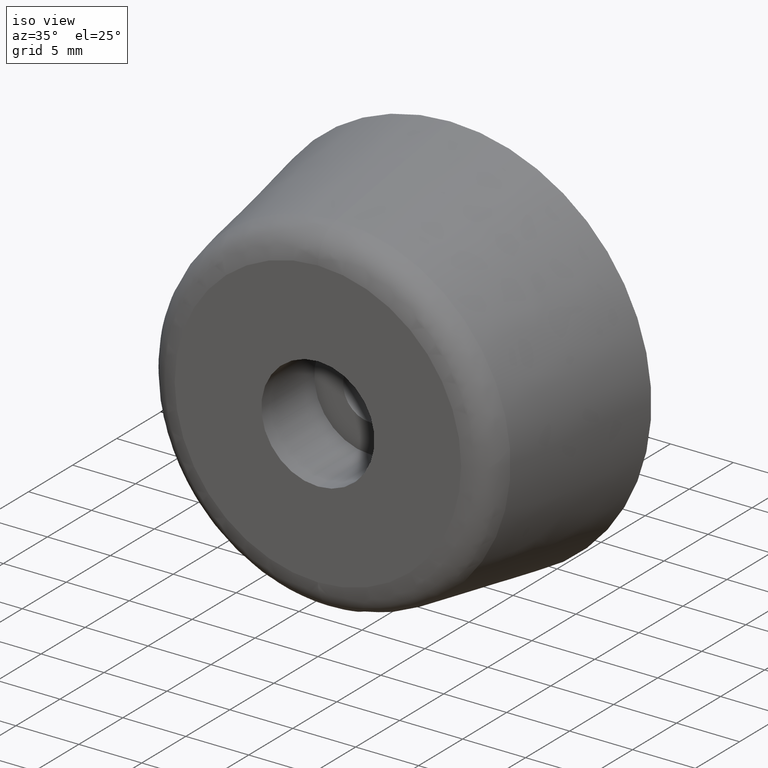
[diagram: clean part render]
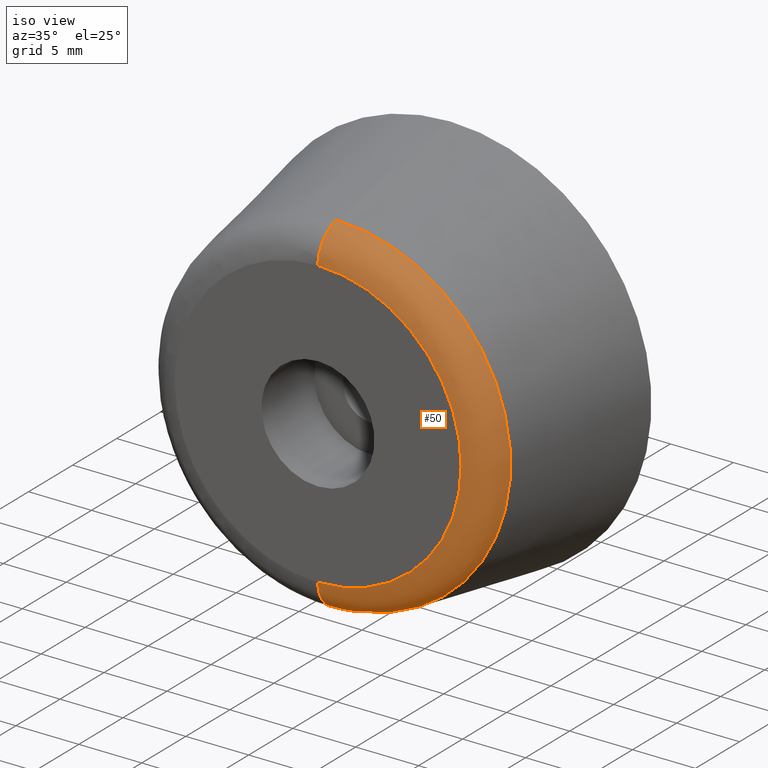
[diagram: same view with one face highlighted and labeled with its STEP entity id]
A machine part, iso view. The second image highlights one B-rep face of the part: STEP entity #50.
In plain terms, the highlighted face is a freeform B-spline surface patch.
Its self-contained STEP definition (entity closure, byte-faithful):
#50=ADVANCED_FACE('',(#155),#154,.T.);
#154=( BOUNDED_SURFACE() B_SPLINE_SURFACE( 2,2,((#250,#251,#252,#253,#254),(#255,#256,#257,#258,#259),(#260,#261,#262,#263,#264),(#265,#266,#267,#268,#269),(#270,#271,#272,#273,#274)), .UNSPECIFIED.,.F.,.F.,.F.) B_SPLINE_SURFACE_WITH_KNOTS((3,2,3),(3,2,3),(0.00000000000E+00,5.00000000000E-01,1.00000000000E+00),(0.00000000000E+00,5.00000000000E-01,1.00000000000E+00), .UNSPECIFIED. ) GEOMETRIC_REPRESENTATION_ITEM() RATIONAL_B_SPLINE_SURFACE(((1.00000000000E+00,7.63019982473E-01,1.00000000000E+00,7.63019982473E-01,1.00000000000E+00),(7.07106781187E-01,5.39536603787E-01,7.07106781187E-01,5.39536603787E-01,7.07106781187E-01),(1.00000000000E+00,7.63019982473E-01,1.00000000000E+00,7.63019982473E-01,1.00000000000E+00),(7.07106781187E-01,5.39536603787E-01,7.07106781187E-01,5.39536603787E-01,7.07106781187E-01),(1.00000000000E+00,7.63019982473E-01,1.00000000000E+00,7.63019982473E-01,1.00000000000E+00))) REPRESENTATION_ITEM('') SURFACE() );
#155=FACE_OUTER_BOUND('',#275,.T.);
#250=CARTESIAN_POINT('',(1.38777317985E-14,-1.29109974683E+01,-1.38481670886E+01));
#251=CARTESIAN_POINT('',(1.38777332066E-14,-1.50000000000E+01,-1.35000000000E+01));
#252=CARTESIAN_POINT('',(1.38777417722E-14,-1.50000000000E+01,-1.13821822790E+01));
#253=CARTESIAN_POINT('',(1.38777503378E-14,-1.50000000000E+01,-9.26436455808E+00));
#254=CARTESIAN_POINT('',(1.38777517460E-14,-1.29109974683E+01,-8.91619746946E+00));
#255=CARTESIAN_POINT('',(1.38481670886E+01,-1.29109974683E+01,-1.38481670886E+01));
#256=CARTESIAN_POINT('',(1.35000000000E+01,-1.50000000000E+01,-1.35000000000E+01));
#257=CARTESIAN_POINT('',(1.13821822790E+01,-1.50000000000E+01,-1.13821822790E+01));
#258=CARTESIAN_POINT('',(9.26436455808E+00,-1.50000000000E+01,-9.26436455808E+00));
#259=CARTESIAN_POINT('',(8.91619746946E+00,-1.29109974683E+01,-8.91619746946E+00));
#260=CARTESIAN_POINT('',(1.38481670886E+01,-1.29109974683E+01,-8.48011684319E-16));
#261=CARTESIAN_POINT('',(1.35000000000E+01,-1.50000000000E+01,-8.26691190613E-16));
#262=CARTESIAN_POINT('',(1.13821822790E+01,-1.50000000000E+01,-6.97003690373E-16));
#263=CARTESIAN_POINT('',(9.26436455808E+00,-1.50000000000E+01,-5.67316190133E-16));
#264=CARTESIAN_POINT('',(8.91619746946E+00,-1.29109974683E+01,-5.45995696428E-16));
#265=CARTESIAN_POINT('',(1.38481670886E+01,-1.29109974683E+01,1.38481670886E+01));
#266=CARTESIAN_POINT('',(1.35000000000E+01,-1.50000000000E+01,1.35000000000E+01));
#267=CARTESIAN_POINT('',(1.13821822790E+01,-1.50000000000E+01,1.13821822790E+01));
#268=CARTESIAN_POINT('',(9.26436455808E+00,-1.50000000000E+01,9.26436455808E+00));
#269=CARTESIAN_POINT('',(8.91619746946E+00,-1.29109974683E+01,8.91619746946E+00));
#270=CARTESIAN_POINT('',(1.55737551671E-14,-1.29109974683E+01,1.38481670886E+01));
#271=CARTESIAN_POINT('',(1.55311155879E-14,-1.50000000000E+01,1.35000000000E+01));
#272=CARTESIAN_POINT('',(1.52717491530E-14,-1.50000000000E+01,1.13821822790E+01));
#273=CARTESIAN_POINT('',(1.50123827181E-14,-1.50000000000E+01,9.26436455808E+00));
#274=CARTESIAN_POINT('',(1.49697431388E-14,-1.29109974683E+01,8.91619746946E+00));
#275=EDGE_LOOP('',(#316,#317,#318,#319));
#316=ORIENTED_EDGE('',*,*,#335,.T.);
#317=ORIENTED_EDGE('',*,*,#340,.T.);
#318=ORIENTED_EDGE('',*,*,#328,.F.);
#319=ORIENTED_EDGE('',*,*,#341,.F.);
#328=EDGE_CURVE('',#398,#399,#400,.T.);
#335=EDGE_CURVE('',#426,#433,#446,.T.);
#340=EDGE_CURVE('',#433,#399,#476,.T.);
#341=EDGE_CURVE('',#426,#398,#482,.T.);
#398=VERTEX_POINT('',#528);
#399=VERTEX_POINT('',#529);
#400=CIRCLE('',#533,1.13821822790E+01);
#426=VERTEX_POINT('',#548);
#433=VERTEX_POINT('',#551);
#446=CIRCLE('',#561,1.38481670886E+01);
#476=(BOUNDED_CURVE() B_SPLINE_CURVE(2,(#570,#571,#572),.UNSPECIFIED.,.F.,.F.) B_SPLINE_CURVE_WITH_KNOTS((3,3),(0.00000000000E+00,5.00000000000E-01),.UNSPECIFIED.) CURVE() GEOMETRIC_REPRESENTATION_ITEM() RATIONAL_B_SPLINE_CURVE((1.00000000000E+00,7.63019982473E-01,1.00000000000E+00)) REPRESENTATION_ITEM('') );
#482=(BOUNDED_CURVE() B_SPLINE_CURVE(3,(#573,#574,#575,#576,#577),.UNSPECIFIED.,.F.,.F.) B_SPLINE_CURVE_WITH_KNOTS((4,1,4),(0.00000000000E+00,2.50000000166E-01,5.00000000297E-01),.UNSPECIFIED.) CURVE() GEOMETRIC_REPRESENTATION_ITEM() RATIONAL_B_SPLINE_CURVE((1.00000000000E+00,1.00000000000E+00,1.00000000000E+00,1.00000000000E+00,1.00000000000E+00)) REPRESENTATION_ITEM('') );
#528=CARTESIAN_POINT('',(1.42108547152E-14,-1.50000000000E+01,-1.13821822790E+01));
#529=CARTESIAN_POINT('',(1.48029736617E-14,-1.50000000000E+01,1.13821822790E+01));
#530=CARTESIAN_POINT('',(1.42108547152E-14,-1.50000000000E+01,0.00000000000E+00));
#531=DIRECTION('',(0.00000000000E+00,-1.00000000000E+00,-0.00000000000E+00));
#532=DIRECTION('',(-1.22460635382E-16,0.00000000000E+00,-1.00000000000E+00));
#533=AXIS2_PLACEMENT_3D('',#530,#531,#532);
#548=CARTESIAN_POINT('',(1.42108547152E-14,-1.29109974683E+01,-1.38481670886E+01));
#551=CARTESIAN_POINT('',(1.48029736617E-14,-1.29109974683E+01,1.38481670886E+01));
#558=CARTESIAN_POINT('',(1.42108547152E-14,-1.29109974683E+01,0.00000000000E+00));
#559=DIRECTION('',(0.00000000000E+00,-1.00000000000E+00,-0.00000000000E+00));
#560=DIRECTION('',(-1.22460635382E-16,0.00000000000E+00,-1.00000000000E+00));
#561=AXIS2_PLACEMENT_3D('',#558,#559,#560);
#570=CARTESIAN_POINT('',(1.21819324673E-14,-1.29109974683E+01,1.38481670886E+01));
#571=CARTESIAN_POINT('',(1.22245692302E-14,-1.50000000000E+01,1.35000000000E+01));
#572=CARTESIAN_POINT('',(1.24839185339E-14,-1.50000000000E+01,1.13821822790E+01));
#573=CARTESIAN_POINT('',(1.53950926081E-14,-1.29109974683E+01,-1.38481670886E+01));
#574=CARTESIAN_POINT('',(1.54297375365E-14,-1.34850057881E+01,-1.37560842212E+01));
#575=CARTESIAN_POINT('',(1.54689156929E-14,-1.45708288166E+01,-1.31364374635E+01));
#576=CARTESIAN_POINT('',(1.54297375365E-14,-1.50035364060E+01,-1.19635189262E+01));
#577=CARTESIAN_POINT('',(1.53950926079E-14,-1.50000000000E+01,-1.13821822771E+01));